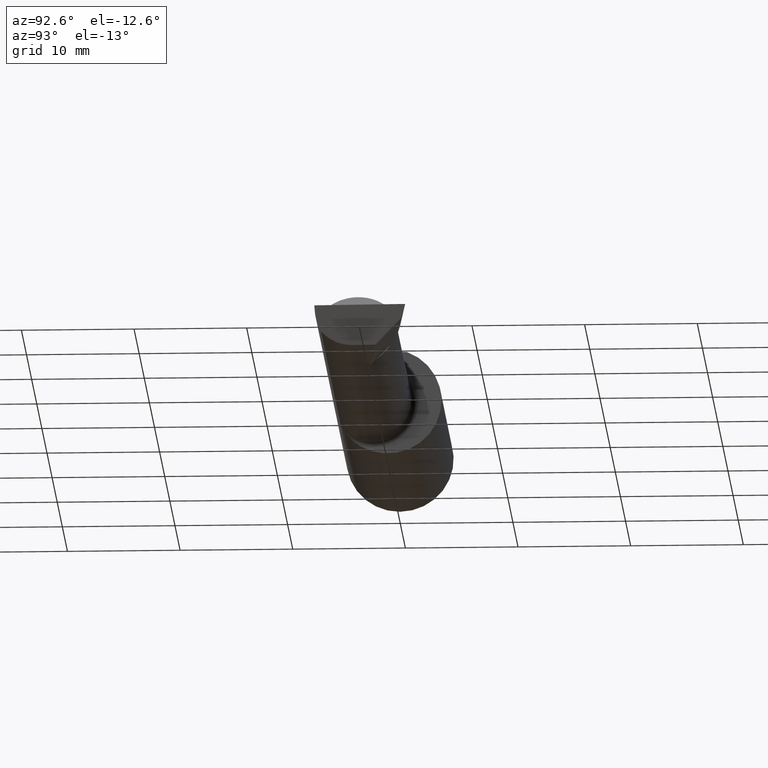
[diagram: clean part render]
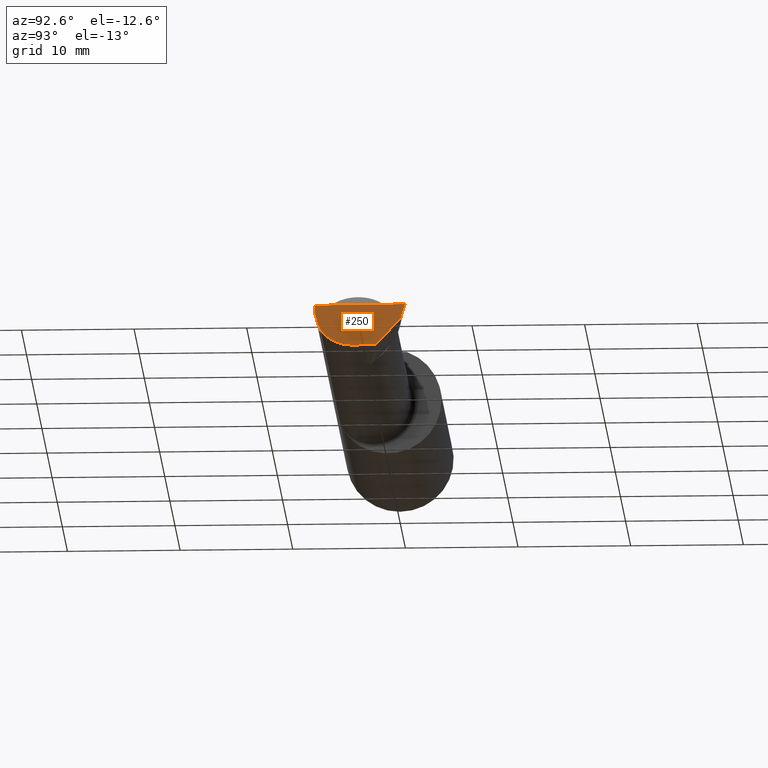
[diagram: same view with one face highlighted and labeled with its STEP entity id]
A machine part, auxiliary view. The second image highlights one B-rep face of the part: STEP entity #250.
In plain terms, the highlighted planar face has unit normal (-0.9922, 0.026, 0.1219).
Its self-contained STEP definition (entity closure, byte-faithful):
#17 = FACE_OUTER_BOUND ( 'NONE', #593, .T. ) ;
#37 = LINE ( 'NONE', #189, #451 ) ;
#38 = CARTESIAN_POINT ( 'NONE',  ( 2.477889026591898247, -0.05682100378451882677, -0.1400500000000000633 ) ) ;
#40 = ORIENTED_EDGE ( 'NONE', *, *, #512, .F. ) ;
#41 = CARTESIAN_POINT ( 'NONE',  ( 2.481080296960508580, -0.1635956445993030639, -0.09130436773856169530 ) ) ;
#58 = PLANE ( 'NONE',  #198 ) ;
#60 = LINE ( 'NONE', #296, #148 ) ;
#88 = EDGE_CURVE ( 'NONE', #124, #456, #376, .T. ) ;
#124 = VERTEX_POINT ( 'NONE', #381 ) ;
#148 = VECTOR ( 'NONE', #301, 39.37007874015748854 ) ;
#161 = VERTEX_POINT ( 'NONE', #245 ) ;
#174 = VERTEX_POINT ( 'NONE', #240 ) ;
#176 = ORIENTED_EDGE ( 'NONE', *, *, #232, .T. ) ;
#181 = ORIENTED_EDGE ( 'NONE', *, *, #224, .T. ) ;
#189 = CARTESIAN_POINT ( 'NONE',  ( 2.490039159128059953, -0.2497391662021650194, 6.932588350567417155E-17 ) ) ;
#198 = AXIS2_PLACEMENT_3D ( 'NONE', #436, #495, #390 ) ;
#208 = VERTEX_POINT ( 'NONE', #253 ) ;
#224 = EDGE_CURVE ( 'NONE', #208, #456, #262, .T. ) ;
#232 = EDGE_CURVE ( 'NONE', #124, #161, #60, .T. ) ;
#239 = DIRECTION ( 'NONE',  ( 0.02617694830779364323, 0.9996573249755593693, -2.665804247635780349E-18 ) ) ;
#240 = CARTESIAN_POINT ( 'NONE',  ( 2.499999999999978684, 0.1306500000000238582, 8.403660643088248419E-14 ) ) ;
#241 = ORIENTED_EDGE ( 'NONE', *, *, #584, .F. ) ;
#245 = CARTESIAN_POINT ( 'NONE',  ( 2.493439983562941720, 0.1146611065212079089, -0.04999999999999999584 ) ) ;
#248 = CARTESIAN_POINT ( 'NONE',  ( 2.476787929832031221, -0.09887019258091189755, -0.1400500000000000078 ) ) ;
#250 = ADVANCED_FACE ( 'NONE', ( #17 ), #58, .F. ) ;
#253 = CARTESIAN_POINT ( 'NONE',  ( 2.481080296960508580, -0.1635956445993030639, -0.09130436773856169530 ) ) ;
#262 =( BOUNDED_CURVE ( )  B_SPLINE_CURVE ( 3, ( #480, #292, #248, #542 ),
 .UNSPECIFIED., .F., .T. ) 
 B_SPLINE_CURVE_WITH_KNOTS ( ( 4, 4 ),
 ( 5.632580117768154260, 6.493234751459282528 ),
 .UNSPECIFIED. ) 
 CURVE ( )  GEOMETRIC_REPRESENTATION_ITEM ( )  RATIONAL_B_SPLINE_CURVE ( ( 1.000000000000000000, 0.9392195014330942948, 0.9392195014330942948, 1.000000000000000000 ) ) 
 REPRESENTATION_ITEM ( '' )  );
#279 = CARTESIAN_POINT ( 'NONE',  ( 2.487725449370724817, -0.1873500000000000443, -0.03213820089768505694 ) ) ;
#292 = CARTESIAN_POINT ( 'NONE',  ( 2.477925907309857401, -0.1365595166907236646, -0.1227499502647107360 ) ) ;
#296 = CARTESIAN_POINT ( 'NONE',  ( 2.493766568580444432, 0.1168246249203732934, -0.04780233936830599606 ) ) ;
#301 = DIRECTION ( 'NONE',  ( 0.1053106618240635256, 0.6976485211320200275, 0.7086580314005359593 ) ) ;
#328 = CARTESIAN_POINT ( 'NONE',  ( 2.500188977433779769, 0.1311105994646662165, 0.001440373173041280741 ) ) ;
#365 = ORIENTED_EDGE ( 'NONE', *, *, #603, .T. ) ;
#376 = LINE ( 'NONE', #38, #581 ) ;
#381 = CARTESIAN_POINT ( 'NONE',  ( 2.480058035321255794, 0.02601009779168077587, -0.1400500000000000633 ) ) ;
#390 = DIRECTION ( 'NONE',  ( 0.1219104985251942275, 0.000000000000000000, 0.9925410975618785825 ) ) ;
#422 = CARTESIAN_POINT ( 'NONE',  ( 2.491672876940991710, -0.1873499999999999888, 6.915950918908297591E-17 ) ) ;
#436 = CARTESIAN_POINT ( 'NONE',  ( 2.475850273311264615, -0.1244607267090816621, -0.1422282308645907711 ) ) ;
#444 = VERTEX_POINT ( 'NONE', #566 ) ;
#451 = VECTOR ( 'NONE', #239, 39.37007874015748854 ) ;
#456 = VERTEX_POINT ( 'NONE', #474 ) ;
#464 =( BOUNDED_CURVE ( )  B_SPLINE_CURVE ( 3, ( #41, #516, #279, #422 ),
 .UNSPECIFIED., .F., .T. ) 
 B_SPLINE_CURVE_WITH_KNOTS ( ( 4, 4 ),
 ( 0.8516985021657653698, 1.360746882515200484 ),
 .UNSPECIFIED. ) 
 CURVE ( )  GEOMETRIC_REPRESENTATION_ITEM ( )  RATIONAL_B_SPLINE_CURVE ( ( 1.000000000000000000, 0.9785221379938656705, 0.9785221379938656705, 1.000000000000000000 ) ) 
 REPRESENTATION_ITEM ( '' )  );
#466 = DIRECTION ( 'NONE',  ( -0.02617694830779365364, -0.9996573249755593693, -8.535148296544462419E-17 ) ) ;
#474 = CARTESIAN_POINT ( 'NONE',  ( 2.477873865042410806, -0.05739999999999999963, -0.1400500000000000633 ) ) ;
#480 = CARTESIAN_POINT ( 'NONE',  ( 2.481080296960508580, -0.1635956445993030639, -0.09130436773856169530 ) ) ;
#495 = DIRECTION ( 'NONE',  ( -0.9922060308645608284, 0.02598182930461468559, 0.1218693434050591162 ) ) ;
#512 = EDGE_CURVE ( 'NONE', #208, #444, #464, .T. ) ;
#516 = CARTESIAN_POINT ( 'NONE',  ( 2.484117089522337452, -0.1792580844883771285, -0.06324101202936134591 ) ) ;
#519 = DIRECTION ( 'NONE',  ( 0.1240019227988267692, 0.3022330132596590113, 0.9451342385281470415 ) ) ;
#539 = VECTOR ( 'NONE', #519, 39.37007874015748854 ) ;
#542 = CARTESIAN_POINT ( 'NONE',  ( 2.477873865042410806, -0.05739999999999999963, -0.1400500000000000633 ) ) ;
#566 = CARTESIAN_POINT ( 'NONE',  ( 2.491672876940991710, -0.1873499999999999888, 6.915950918908297591E-17 ) ) ;
#572 = LINE ( 'NONE', #328, #539 ) ;
#574 = ORIENTED_EDGE ( 'NONE', *, *, #88, .F. ) ;
#581 = VECTOR ( 'NONE', #466, 39.37007874015748143 ) ;
#584 = EDGE_CURVE ( 'NONE', #444, #174, #37, .T. ) ;
#593 = EDGE_LOOP ( 'NONE', ( #181, #574, #176, #365, #241, #40 ) ) ;
#603 = EDGE_CURVE ( 'NONE', #161, #174, #572, .T. ) ;